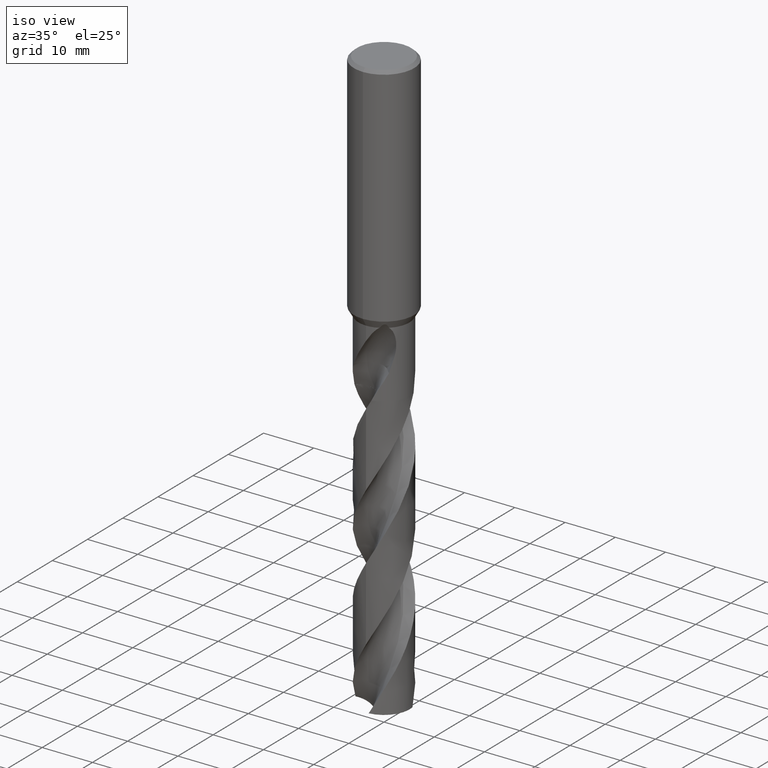
[diagram: clean part render]
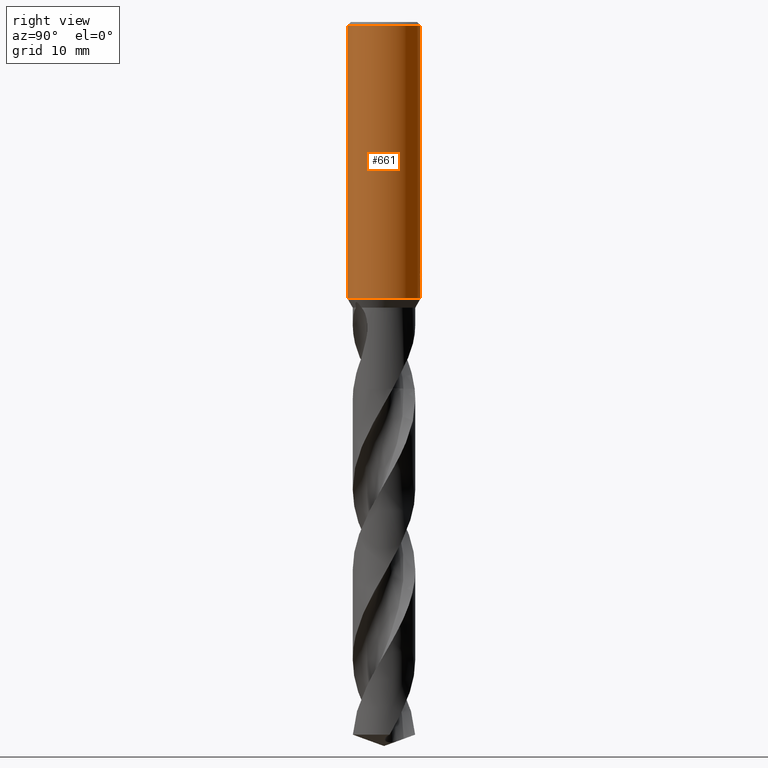
[diagram: tour spotlight — one face highlighted and labeled with its STEP entity id]
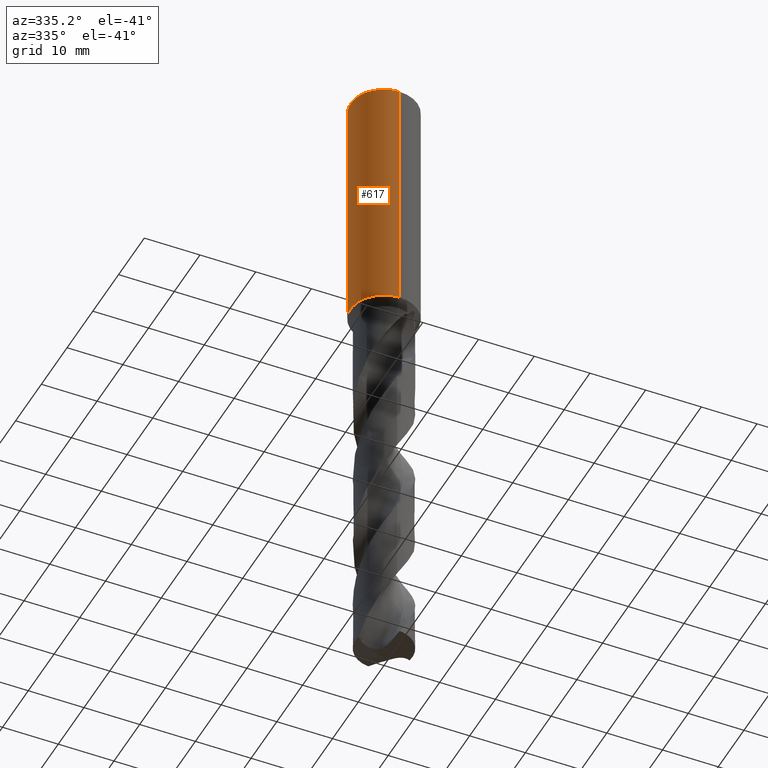
[diagram: tour spotlight — one face highlighted and labeled with its STEP entity id]
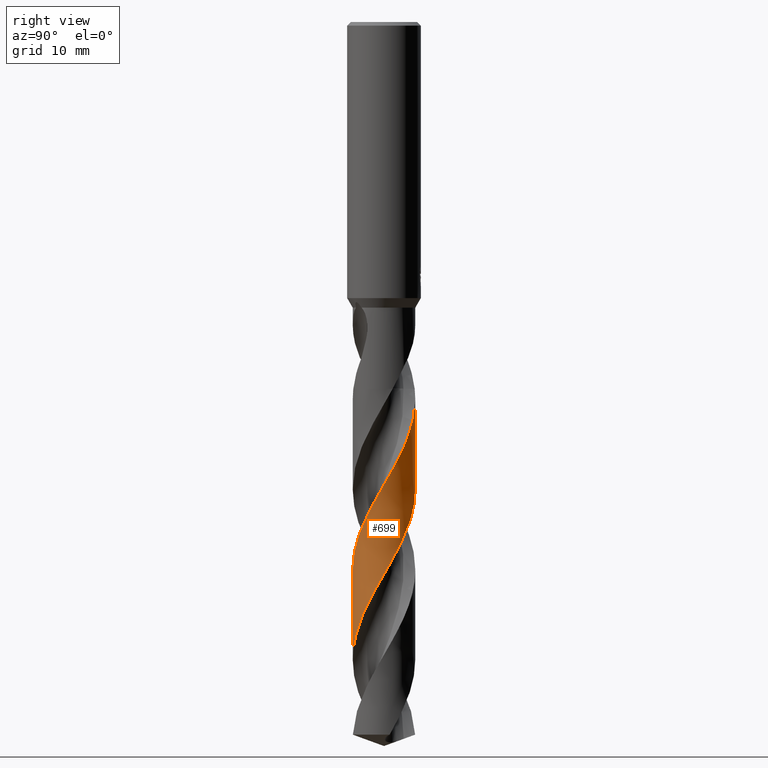
[diagram: tour spotlight — one face highlighted and labeled with its STEP entity id]
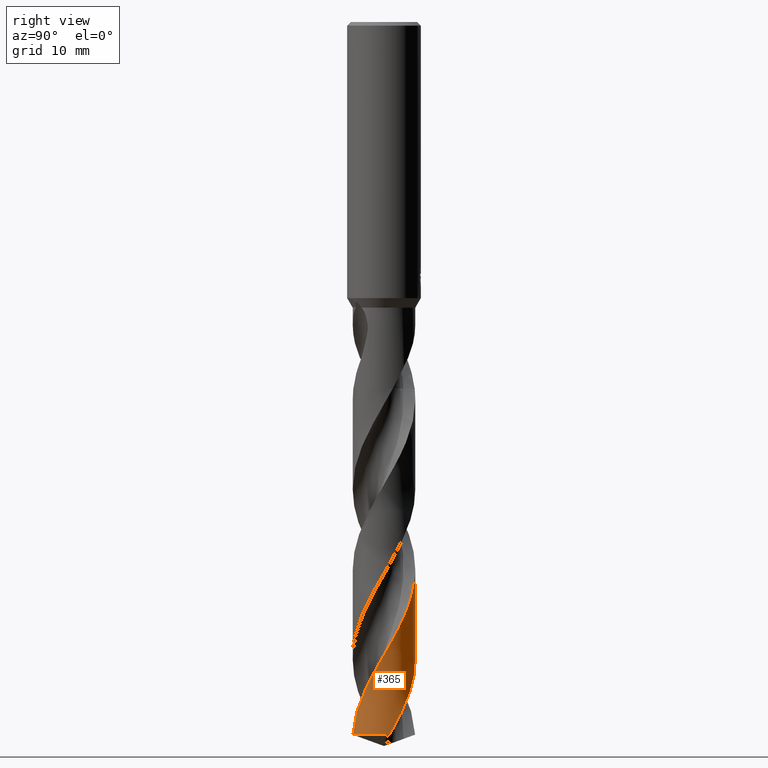
[diagram: tour spotlight — one face highlighted and labeled with its STEP entity id]
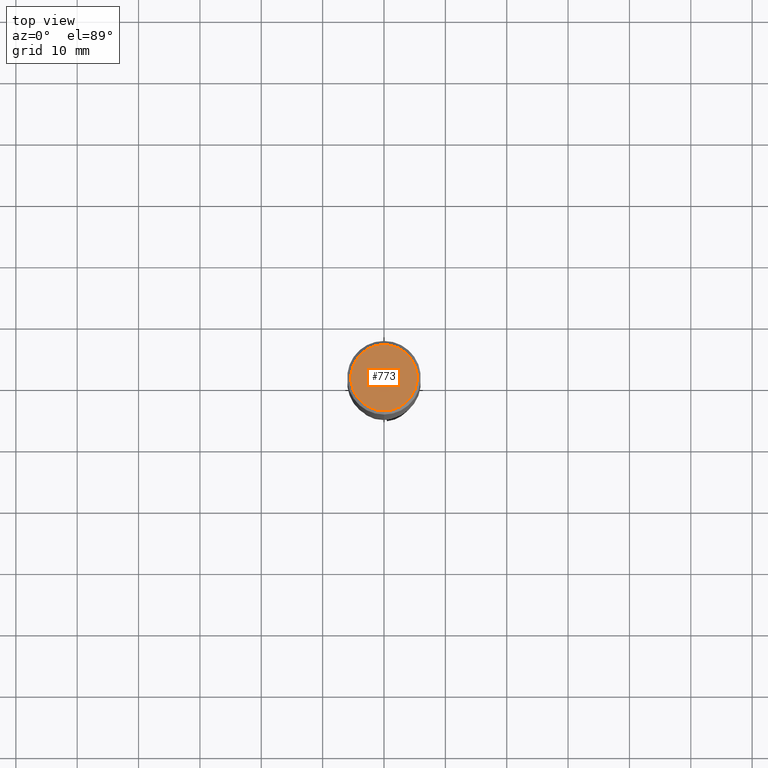
[diagram: tour spotlight — one face highlighted and labeled with its STEP entity id]
A machine part: a face-by-face anatomy tour. The part has 50 B-rep faces; the first image is the clean iso view, then the 5 largest visible faces are spotlighted one at a time (largest first), each with its STEP entity span.

Face 1 — right view, entity #661. In plain terms, the highlighted cylindrical surface (partial cylindrical patch) has radius 6 mm, axis along (-0, -0, 1).
Definition (entity closure, byte-faithful):
#317=EDGE_CURVE('',#433,#683,#873,.T.);
#349=EDGE_CURVE('',#709,#409,#908,.T.);
#357=VERTEX_POINT('',#916);
#373=VERTEX_POINT('',#935);
#407=VERTEX_POINT('',#973);
#409=VERTEX_POINT('',#975);
#433=VERTEX_POINT('',#1001);
#515=EDGE_CURVE('',#527,#373,#1088,.T.);
#527=VERTEX_POINT('',#1101);
#615=EDGE_CURVE('',#373,#683,#1192,.T.);
#633=EDGE_CURVE('',#409,#829,#1212,.T.);
#635=EDGE_CURVE('',#433,#407,#1214,.T.);
#653=VERTEX_POINT('',#1234);
#661=ADVANCED_FACE('',(#1242),#1243,.T.);
#663=EDGE_CURVE('',#829,#407,#1245,.T.);
#665=EDGE_CURVE('',#667,#527,#1247,.T.);
#667=VERTEX_POINT('',#1249);
#683=VERTEX_POINT('',#1267);
#689=EDGE_CURVE('',#357,#653,#1273,.T.);
#709=VERTEX_POINT('',#1296);
#739=EDGE_CURVE('',#763,#667,#1332,.T.);
#763=VERTEX_POINT('',#1357);
#781=EDGE_CURVE('',#653,#763,#1378,.T.);
#823=EDGE_CURVE('',#709,#357,#1427,.T.);
#829=VERTEX_POINT('',#1433);
#873=LINE('',#1552,#1553);
#908=LINE('',#2372,#2373);
#916=CARTESIAN_POINT('',(0.29010312703583,5.99298257762227,-42.9998328990228));
#935=CARTESIAN_POINT('',(0.799431726384364,5.94650392372275,-40.000000276873));
#973=CARTESIAN_POINT('',(7.34763812293426E-016,-6.0,-0.600000000000001));
#975=CARTESIAN_POINT('',(0.0,6.0,-45.0));
#1001=CARTESIAN_POINT('',(0.0,6.0,-0.600000000000001));
#1088=B_SPLINE_CURVE_WITH_KNOTS('',3,(#3954,#3955,#3956,#3957,#3958,#3959,#3960,#3961,#3962,#3963),.UNSPECIFIED.,.F.,.F.,(4,2,2,2,4),(0.616864768993534,0.925297153490302,1.23372953798707,1.54196894672892,1.85020835547076),.UNSPECIFIED.);
#1101=CARTESIAN_POINT('',(1.33721006514658,5.84909131760402,-40.5150484364821));
#1192=B_SPLINE_CURVE_WITH_KNOTS('',3,(#4704,#4705,#4706,#4707,#4708,#4709,#4710,#4711,#4712,#4713,#4714,#4715,#4716,#4717,#4718,#4719,#4720,#4721,#4722,#4723,#4724,#4725,#4726,#4727,#4728,#4729,#4730),.UNSPECIFIED.,.F.,.F.,(4,2,3,2,2,2,2,2,2,2,2,2,4),(-0.542204134993822,-0.271102067496911,0.0,0.271102067496911,0.542204134993821,0.813702489471782,1.08520084394974,1.35603748887758,1.62687413380543,1.89790609484719,2.16893805588896,2.43997001693073,2.71100197797249),.UNSPECIFIED.);
#1212=CIRCLE('',#4779,6.0);
#1214=CIRCLE('',#4782,6.0);
#1234=CARTESIAN_POINT('',(0.873560781758957,5.93606701112552,-41.3198931596091));
#1242=FACE_OUTER_BOUND('',#5630,.T.);
#1243=CYLINDRICAL_SURFACE('',#5631,6.0);
#1245=LINE('',#5634,#5635);
#1247=LINE('',#5638,#5639);
#1249=CARTESIAN_POINT('',(1.33721006514658,5.84909131760402,-42.2901657003257));
#1267=CARTESIAN_POINT('',(4.30282158127811E-015,6.0,-41.0232688117743));
#1273=ELLIPSE('',#6426,18.2879674402186,6.0);
#1296=CARTESIAN_POINT('',(-1.000126236349E-015,6.0,-43.0310253601033));
#1332=B_SPLINE_CURVE_WITH_KNOTS('',3,(#7626,#7627,#7628,#7629,#7630,#7631,#7632,#7633,#7634,#7635),.UNSPECIFIED.,.F.,.F.,(4,2,2,2,4),(8.01939987363182,8.32763927191416,8.6358786701965,8.94431104401671,9.25274341783691),.UNSPECIFIED.);
#1357=CARTESIAN_POINT('',(0.873560781758956,5.93606701112552,-42.7587351791531));
#1378=LINE('',#8521,#8522);
#1427=B_SPLINE_CURVE_WITH_KNOTS('',3,(#9453,#9454,#9455,#9456,#9457,#9458,#9459,#9460,#9461,#9462,#9463,#9464,#9465,#9466,#9467,#9468),.UNSPECIFIED.,.F.,.F.,(4,2,2,2,2,2,2,4),(5.86022917063912,6.16870405720903,6.47725847293827,6.78581288866751,7.09436730439676,7.402921720126,7.71116114554584,8.01940057096568),.UNSPECIFIED.);
#1433=CARTESIAN_POINT('',(7.34763812293426E-016,-6.0,-45.0));
#1552=CARTESIAN_POINT('',(-7.34763812293426E-016,6.0,-22.8));
#1553=VECTOR('',#9840,1.0);
#2372=CARTESIAN_POINT('',(-7.34763812293426E-016,6.0,-22.8));
#2373=VECTOR('',#9874,1.0);
#3954=CARTESIAN_POINT('',(1.47572255922527,5.81568937686614,-40.7778857706544));
#3955=CARTESIAN_POINT('',(1.43408414695966,5.82625505721574,-40.6776366099009));
#3956=CARTESIAN_POINT('',(1.38231447896357,5.83891732292942,-40.5816487554591));
#3957=CARTESIAN_POINT('',(1.26287133719122,5.86591039891312,-40.404259737123));
#3958=CARTESIAN_POINT('',(1.19518872778899,5.88021296420216,-40.3228604278537));
#3959=CARTESIAN_POINT('',(1.05112183874896,5.90766593069519,-40.1788296843787));
#3960=CARTESIAN_POINT('',(0.969743089830991,5.92179330445672,-40.111188656323));
#3961=CARTESIAN_POINT('',(0.792381475667972,5.94812316600191,-39.9918074082397));
#3962=CARTESIAN_POINT('',(0.696400454612605,5.96029984760923,-39.9400587582751));
#3963=CARTESIAN_POINT('',(0.596162331669374,5.97030907694891,-39.8984402290046));
#4704=CARTESIAN_POINT('',(0.665038279511986,5.96302977409838,-39.8135117776465));
#4705=CARTESIAN_POINT('',(0.728716101835783,5.95592798339707,-39.8772374280006));
#4706=CARTESIAN_POINT('',(0.783974665019777,5.94867668154847,-39.9579557273851));
#4707=CARTESIAN_POINT('',(0.857320507570535,5.93854966257537,-40.1349694534753));
#4708=CARTESIAN_POINT('',(0.875400981188567,5.93579591311343,-40.2312746567545));
#4709=CARTESIAN_POINT('',(0.875400981188567,5.93579591311343,-40.3216420125868));
#4710=CARTESIAN_POINT('',(0.875400981188567,5.93579591311343,-40.4120093684191));
#4711=CARTESIAN_POINT('',(0.857320507570535,5.93854966257537,-40.5083145716983));
#4712=CARTESIAN_POINT('',(0.783974665019777,5.94867668154847,-40.6853282977885));
#4713=CARTESIAN_POINT('',(0.728716101835784,5.95592798339707,-40.766046597173));
#4714=CARTESIAN_POINT('',(0.601267375301349,5.97014194593481,-40.8935910496813));
#4715=CARTESIAN_POINT('',(0.52050089626908,5.97804010501944,-40.9489349030958));
#4716=CARTESIAN_POINT('',(0.343370231624616,5.99082478161003,-41.0224010244896));
#4717=CARTESIAN_POINT('',(0.246995041657254,5.9955970178221,-41.0405166027747));
#4718=CARTESIAN_POINT('',(0.066278235124748,6.00031311449822,-41.0405166027747));
#4719=CARTESIAN_POINT('',(-0.0299950498794653,6.00057849353559,-41.0224799292738));
#4720=CARTESIAN_POINT('',(-0.207070170783241,5.99707961466003,-40.949146253936));
#4721=CARTESIAN_POINT('',(-0.287875322309355,5.99343072940708,-40.8938517989794));
#4722=CARTESIAN_POINT('',(-0.415515670858363,5.98593657913032,-40.7662728045656));
#4723=CARTESIAN_POINT('',(-0.470860335647626,5.98160913098325,-40.6854535363062));
#4724=CARTESIAN_POINT('',(-0.544278095376138,5.97537602271911,-40.5083128294691));
#4725=CARTESIAN_POINT('',(-0.562348199187247,5.97358891311336,-40.4119859996007));
#4726=CARTESIAN_POINT('',(-0.562348199187247,5.97358891311336,-40.2312980255729));
#4727=CARTESIAN_POINT('',(-0.544278095376141,5.97537602271911,-40.1349711957045));
#4728=CARTESIAN_POINT('',(-0.470860335647634,5.98160913098325,-39.9578304888674));
#4729=CARTESIAN_POINT('',(-0.415515670858364,5.98593657913032,-39.8770112206079));
#4730=CARTESIAN_POINT('',(-0.351672492652108,5.98968500489899,-39.8131987305268));
#4779=AXIS2_PLACEMENT_3D('',#10143,#10144,#10145);
#4782=AXIS2_PLACEMENT_3D('',#10146,#10147,#10148);
#5630=EDGE_LOOP('',(#10169,#10170,#10171,#10172,#10173,#10174,#10175,#10176,#10177,#10178,#10179,#10180));
#5631=AXIS2_PLACEMENT_3D('',#10181,#10182,#10183);
#5634=CARTESIAN_POINT('',(7.34763812293426E-016,-6.0,-22.8));
#5635=VECTOR('',#10184,1.0);
#5638=CARTESIAN_POINT('',(1.33721006514658,5.84909131760402,-41.4026070684039));
#5639=VECTOR('',#10185,1.0);
#6426=AXIS2_PLACEMENT_3D('',#10207,#10208,#10209);
#7626=CARTESIAN_POINT('',(0.596162353925366,5.97030907472655,-42.9067738917094));
#7627=CARTESIAN_POINT('',(0.696400473442532,5.96029984535159,-42.865155363849));
#7628=CARTESIAN_POINT('',(0.792381491214139,5.94812316388512,-42.8134067156396));
#7629=CARTESIAN_POINT('',(0.969743099309515,5.92179330285852,-42.6940254716034));
#7630=CARTESIAN_POINT('',(1.05112184544356,5.90766592947307,-42.6263844458399));
#7631=CARTESIAN_POINT('',(1.19518872950838,5.8802129638209,-42.4823537072831));
#7632=CARTESIAN_POINT('',(1.26287133655555,5.86591039902768,-42.4009544008203));
#7633=CARTESIAN_POINT('',(1.38231447417469,5.83891732404075,-42.2235653885997));
#7634=CARTESIAN_POINT('',(1.43408414037219,5.82625505882607,-42.1275775374671));
#7635=CARTESIAN_POINT('',(1.47572255119055,5.81568937890493,-42.0273283801715));
#8521=CARTESIAN_POINT('',(0.873560781758957,5.93606701112552,-42.0393141693811));
#8522=VECTOR('',#10328,1.0);
#9453=CARTESIAN_POINT('',(-1.37942962388976,5.83927854385585,-42.3120938518854));
#9454=CARTESIAN_POINT('',(-1.3197524098915,5.85337626434356,-42.4007460556891));
#9455=CARTESIAN_POINT('',(-1.25213007147997,5.86835238153676,-42.4821006164436));
#9456=CARTESIAN_POINT('',(-1.10815476297052,5.89723538536299,-42.6261133873133));
#9457=CARTESIAN_POINT('',(-1.02679168998259,5.91217036370492,-42.6937759496578));
#9458=CARTESIAN_POINT('',(-0.849449577088966,5.94024368186983,-42.8132077327803));
#9459=CARTESIAN_POINT('',(-0.75347222810614,5.95335623661259,-42.8649855238005));
#9460=CARTESIAN_POINT('',(-0.552969605024409,5.97531551411668,-42.9482857310807));
#9461=CARTESIAN_POINT('',(-0.448275455975639,5.98416266823847,-42.9798740542996));
#9462=CARTESIAN_POINT('',(-0.237398161173605,5.99623180317797,-43.0213727490831));
#9463=CARTESIAN_POINT('',(-0.131212492151728,5.9994467834274,-43.0312723335086));
#9464=CARTESIAN_POINT('',(0.0743831578630581,6.00041865072596,-43.0312723335086));
#9465=CARTESIAN_POINT('',(0.180490238104753,5.99821260764714,-43.021392590677));
#9466=CARTESIAN_POINT('',(0.391259717323761,5.98815890288379,-42.9799476485545));
#9467=CARTESIAN_POINT('',(0.495924498667214,5.98031828233743,-42.948392857806));
#9468=CARTESIAN_POINT('',(0.596162626581452,5.9703090475006,-42.9067743263419));
#9840=DIRECTION('',(0.0,0.0,-1.0));
#9874=DIRECTION('',(0.0,0.0,-1.0));
#10143=CARTESIAN_POINT('',(0.0,0.0,-45.0));
#10144=DIRECTION('',(0.0,0.0,-1.0));
#10145=DIRECTION('',(0.0,1.0,0.0));
#10146=CARTESIAN_POINT('',(0.0,0.0,-0.600000000000001));
#10147=DIRECTION('',(0.0,0.0,-1.0));
#10148=DIRECTION('',(0.0,1.0,0.0));
#10169=ORIENTED_EDGE('',*,*,#317,.F.);
#10170=ORIENTED_EDGE('',*,*,#635,.T.);
#10171=ORIENTED_EDGE('',*,*,#663,.F.);
#10172=ORIENTED_EDGE('',*,*,#633,.F.);
#10173=ORIENTED_EDGE('',*,*,#349,.F.);
#10174=ORIENTED_EDGE('',*,*,#823,.T.);
#10175=ORIENTED_EDGE('',*,*,#689,.T.);
#10176=ORIENTED_EDGE('',*,*,#781,.T.);
#10177=ORIENTED_EDGE('',*,*,#739,.T.);
#10178=ORIENTED_EDGE('',*,*,#665,.T.);
#10179=ORIENTED_EDGE('',*,*,#515,.T.);
#10180=ORIENTED_EDGE('',*,*,#615,.T.);
#10181=CARTESIAN_POINT('',(0.0,0.0,-22.8));
#10182=DIRECTION('',(-0.0,-0.0,1.0));
#10183=DIRECTION('',(0.0,1.0,0.0));
#10184=DIRECTION('',(-0.0,-0.0,1.0));
#10185=DIRECTION('',(-0.0,-0.0,1.0));
#10207=CARTESIAN_POINT('',(0.0,0.0,-43.8351219173269));
#10208=DIRECTION('',(0.944648353914092,0.0,-0.328084573619969));
#10209=DIRECTION('',(0.328084573619969,-0.0,0.944648353914092));
#10328=DIRECTION('',(0.0,0.0,-1.0));

Face 2 — auxiliary view, entity #617. In plain terms, the highlighted cylindrical surface (partial cylindrical patch) has radius 6 mm, axis along (-0, -0, 1).
Definition (entity closure, byte-faithful):
#301=EDGE_CURVE('',#467,#427,#856,.T.);
#317=EDGE_CURVE('',#433,#683,#873,.T.);
#325=EDGE_CURVE('',#829,#409,#882,.T.);
#349=EDGE_CURVE('',#709,#409,#908,.T.);
#407=VERTEX_POINT('',#973);
#409=VERTEX_POINT('',#975);
#413=EDGE_CURVE('',#407,#433,#979,.T.);
#427=VERTEX_POINT('',#995);
#433=VERTEX_POINT('',#1001);
#445=VERTEX_POINT('',#1014);
#467=VERTEX_POINT('',#1037);
#501=VERTEX_POINT('',#1073);
#531=EDGE_CURVE('',#683,#649,#1105,.T.);
#617=ADVANCED_FACE('',(#1194),#1195,.T.);
#639=EDGE_CURVE('',#445,#501,#1218,.T.);
#649=VERTEX_POINT('',#1230);
#655=VERTEX_POINT('',#1236);
#659=EDGE_CURVE('',#649,#445,#1240,.T.);
#663=EDGE_CURVE('',#829,#407,#1245,.T.);
#683=VERTEX_POINT('',#1267);
#709=VERTEX_POINT('',#1296);
#771=EDGE_CURVE('',#427,#709,#1366,.T.);
#815=EDGE_CURVE('',#655,#467,#1419,.T.);
#825=EDGE_CURVE('',#501,#655,#1429,.T.);
#829=VERTEX_POINT('',#1433);
#856=ELLIPSE('',#1454,6.68957059225716,6.0);
#873=LINE('',#1552,#1553);
#882=CIRCLE('',#1563,6.0);
#908=LINE('',#2372,#2373);
#973=CARTESIAN_POINT('',(7.34763812293426E-016,-6.0,-0.600000000000001));
#975=CARTESIAN_POINT('',(0.0,6.0,-45.0));
#979=CIRCLE('',#3539,6.0);
#995=CARTESIAN_POINT('',(-1.337052752443,5.84912727996105,-42.3720803908795));
#1001=CARTESIAN_POINT('',(0.0,6.0,-0.600000000000001));
#1014=CARTESIAN_POINT('',(-0.562333990228013,5.97359025071474,-40.3171221986971));
#1037=CARTESIAN_POINT('',(-7.34750035790944E-016,6.0,-41.7128911336578));
#1073=CARTESIAN_POINT('',(-1.0350734039088,5.91004425097822,-40.3171221986971));
#1105=B_SPLINE_CURVE_WITH_KNOTS('',3,(#4064,#4065,#4066,#4067,#4068,#4069,#4070,#4071,#4072,#4073,#4074,#4075,#4076,#4077,#4078,#4079,#4080,#4081,#4082,#4083,#4084,#4085,#4086,#4087,#4088,#4089,#4090),.UNSPECIFIED.,.F.,.F.,(4,2,3,2,2,2,2,2,2,2,2,2,4),(-0.542204134993822,-0.271102067496911,0.0,0.271102067496911,0.542204134993821,0.813702489471782,1.08520084394974,1.35603748887758,1.62687413380543,1.89790609484719,2.16893805588896,2.43997001693073,2.71100197797249),.UNSPECIFIED.);
#1194=FACE_OUTER_BOUND('',#4732,.T.);
#1195=CYLINDRICAL_SURFACE('',#4733,6.0);
#1218=CIRCLE('',#4869,6.0);
#1230=CARTESIAN_POINT('',(-0.486378944383043,5.98025380083996,-40.6432837483006));
#1236=CARTESIAN_POINT('',(1.23752563440958E-015,6.0,-41.5000801551881));
#1240=B_SPLINE_CURVE_WITH_KNOTS('',3,(#5602,#5603,#5604,#5605,#5606,#5607,#5608,#5609,#5610,#5611,#5612,#5613,#5614,#5615,#5616,#5617,#5618,#5619,#5620,#5621,#5622,#5623,#5624,#5625,#5626,#5627,#5628),.UNSPECIFIED.,.F.,.F.,(4,2,3,2,2,2,2,2,2,2,2,2,4),(-0.542204134993822,-0.271102067496911,0.0,0.271102067496911,0.542204134993821,0.813702489471782,1.08520084394974,1.35603748887758,1.62687413380543,1.89790609484719,2.16893805588896,2.43997001693073,2.71100197797249),.UNSPECIFIED.);
#1245=LINE('',#5634,#5635);
#1267=CARTESIAN_POINT('',(4.30282158127811E-015,6.0,-41.0232688117743));
#1296=CARTESIAN_POINT('',(-1.000126236349E-015,6.0,-43.0310253601033));
#1366=B_SPLINE_CURVE_WITH_KNOTS('',3,(#7779,#7780,#7781,#7782,#7783,#7784,#7785,#7786,#7787,#7788,#7789,#7790,#7791,#7792,#7793,#7794),.UNSPECIFIED.,.F.,.F.,(4,2,2,2,2,2,2,4),(5.86022917063912,6.16870405720903,6.47725847293827,6.78581288866751,7.09436730439676,7.402921720126,7.71116114554584,8.01940057096568),.UNSPECIFIED.);
#1419=LINE('',#9434,#9435);
#1429=B_SPLINE_CURVE_WITH_KNOTS('',3,(#9471,#9472,#9473,#9474,#9475,#9476,#9477,#9478,#9479,#9480,#9481,#9482,#9483,#9484),.UNSPECIFIED.,.F.,.F.,(4,2,2,2,2,2,4),(3.12901819529899,3.57583262703438,4.02264705876978,4.46946149050517,4.91564920039673,5.36183691028829,5.8097355416915),.UNSPECIFIED.);
#1433=CARTESIAN_POINT('',(7.34763812293426E-016,-6.0,-45.0));
#1454=AXIS2_PLACEMENT_3D('',#9829,#9830,#9831);
#1552=CARTESIAN_POINT('',(-7.34763812293426E-016,6.0,-22.8));
#1553=VECTOR('',#9840,1.0);
#1563=AXIS2_PLACEMENT_3D('',#9848,#9849,#9850);
#2372=CARTESIAN_POINT('',(-7.34763812293426E-016,6.0,-22.8));
#2373=VECTOR('',#9874,1.0);
#3539=AXIS2_PLACEMENT_3D('',#9955,#9956,#9957);
#4064=CARTESIAN_POINT('',(0.665038279511986,5.96302977409838,-39.8135117776465));
#4065=CARTESIAN_POINT('',(0.728716101835783,5.95592798339707,-39.8772374280006));
#4066=CARTESIAN_POINT('',(0.783974665019777,5.94867668154847,-39.9579557273851));
#4067=CARTESIAN_POINT('',(0.857320507570535,5.93854966257537,-40.1349694534753));
#4068=CARTESIAN_POINT('',(0.875400981188567,5.93579591311343,-40.2312746567545));
#4069=CARTESIAN_POINT('',(0.875400981188567,5.93579591311343,-40.3216420125868));
#4070=CARTESIAN_POINT('',(0.875400981188567,5.93579591311343,-40.4120093684191));
#4071=CARTESIAN_POINT('',(0.857320507570535,5.93854966257537,-40.5083145716983));
#4072=CARTESIAN_POINT('',(0.783974665019777,5.94867668154847,-40.6853282977885));
#4073=CARTESIAN_POINT('',(0.728716101835784,5.95592798339707,-40.766046597173));
#4074=CARTESIAN_POINT('',(0.601267375301349,5.97014194593481,-40.8935910496813));
#4075=CARTESIAN_POINT('',(0.52050089626908,5.97804010501944,-40.9489349030958));
#4076=CARTESIAN_POINT('',(0.343370231624616,5.99082478161003,-41.0224010244896));
#4077=CARTESIAN_POINT('',(0.246995041657254,5.9955970178221,-41.0405166027747));
#4078=CARTESIAN_POINT('',(0.066278235124748,6.00031311449822,-41.0405166027747));
#4079=CARTESIAN_POINT('',(-0.0299950498794653,6.00057849353559,-41.0224799292738));
#4080=CARTESIAN_POINT('',(-0.207070170783241,5.99707961466003,-40.949146253936));
#4081=CARTESIAN_POINT('',(-0.287875322309355,5.99343072940708,-40.8938517989794));
#4082=CARTESIAN_POINT('',(-0.415515670858363,5.98593657913032,-40.7662728045656));
#4083=CARTESIAN_POINT('',(-0.470860335647626,5.98160913098325,-40.6854535363062));
#4084=CARTESIAN_POINT('',(-0.544278095376138,5.97537602271911,-40.5083128294691));
#4085=CARTESIAN_POINT('',(-0.562348199187247,5.97358891311336,-40.4119859996007));
#4086=CARTESIAN_POINT('',(-0.562348199187247,5.97358891311336,-40.2312980255729));
#4087=CARTESIAN_POINT('',(-0.544278095376141,5.97537602271911,-40.1349711957045));
#4088=CARTESIAN_POINT('',(-0.470860335647634,5.98160913098325,-39.9578304888674));
#4089=CARTESIAN_POINT('',(-0.415515670858364,5.98593657913032,-39.8770112206079));
#4090=CARTESIAN_POINT('',(-0.351672492652108,5.98968500489899,-39.8131987305268));
#4732=EDGE_LOOP('',(#10118,#10119,#10120,#10121,#10122,#10123,#10124,#10125,#10126,#10127,#10128,#10129));
#4733=AXIS2_PLACEMENT_3D('',#10130,#10131,#10132);
#4869=AXIS2_PLACEMENT_3D('',#10149,#10150,#10151);
#5602=CARTESIAN_POINT('',(0.665038279511986,5.96302977409838,-39.8135117776465));
#5603=CARTESIAN_POINT('',(0.728716101835783,5.95592798339707,-39.8772374280006));
#5604=CARTESIAN_POINT('',(0.783974665019777,5.94867668154847,-39.9579557273851));
#5605=CARTESIAN_POINT('',(0.857320507570535,5.93854966257537,-40.1349694534753));
#5606=CARTESIAN_POINT('',(0.875400981188567,5.93579591311343,-40.2312746567545));
#5607=CARTESIAN_POINT('',(0.875400981188567,5.93579591311343,-40.3216420125868));
#5608=CARTESIAN_POINT('',(0.875400981188567,5.93579591311343,-40.4120093684191));
#5609=CARTESIAN_POINT('',(0.857320507570535,5.93854966257537,-40.5083145716983));
#5610=CARTESIAN_POINT('',(0.783974665019777,5.94867668154847,-40.6853282977885));
#5611=CARTESIAN_POINT('',(0.728716101835784,5.95592798339707,-40.766046597173));
#5612=CARTESIAN_POINT('',(0.601267375301349,5.97014194593481,-40.8935910496813));
#5613=CARTESIAN_POINT('',(0.52050089626908,5.97804010501944,-40.9489349030958));
#5614=CARTESIAN_POINT('',(0.343370231624616,5.99082478161003,-41.0224010244896));
#5615=CARTESIAN_POINT('',(0.246995041657254,5.9955970178221,-41.0405166027747));
#5616=CARTESIAN_POINT('',(0.066278235124748,6.00031311449822,-41.0405166027747));
#5617=CARTESIAN_POINT('',(-0.0299950498794653,6.00057849353559,-41.0224799292738));
#5618=CARTESIAN_POINT('',(-0.207070170783241,5.99707961466003,-40.949146253936));
#5619=CARTESIAN_POINT('',(-0.287875322309355,5.99343072940708,-40.8938517989794));
#5620=CARTESIAN_POINT('',(-0.415515670858363,5.98593657913032,-40.7662728045656));
#5621=CARTESIAN_POINT('',(-0.470860335647626,5.98160913098325,-40.6854535363062));
#5622=CARTESIAN_POINT('',(-0.544278095376138,5.97537602271911,-40.5083128294691));
#5623=CARTESIAN_POINT('',(-0.562348199187247,5.97358891311336,-40.4119859996007));
#5624=CARTESIAN_POINT('',(-0.562348199187247,5.97358891311336,-40.2312980255729));
#5625=CARTESIAN_POINT('',(-0.544278095376141,5.97537602271911,-40.1349711957045));
#5626=CARTESIAN_POINT('',(-0.470860335647634,5.98160913098325,-39.9578304888674));
#5627=CARTESIAN_POINT('',(-0.415515670858364,5.98593657913032,-39.8770112206079));
#5628=CARTESIAN_POINT('',(-0.351672492652108,5.98968500489899,-39.8131987305268));
#5634=CARTESIAN_POINT('',(7.34763812293426E-016,-6.0,-22.8));
#5635=VECTOR('',#10184,1.0);
#7779=CARTESIAN_POINT('',(-1.37942962388976,5.83927854385585,-42.3120938518854));
#7780=CARTESIAN_POINT('',(-1.3197524098915,5.85337626434356,-42.4007460556891));
#7781=CARTESIAN_POINT('',(-1.25213007147997,5.86835238153676,-42.4821006164436));
#7782=CARTESIAN_POINT('',(-1.10815476297052,5.89723538536299,-42.6261133873133));
#7783=CARTESIAN_POINT('',(-1.02679168998259,5.91217036370492,-42.6937759496578));
#7784=CARTESIAN_POINT('',(-0.849449577088966,5.94024368186983,-42.8132077327803));
#7785=CARTESIAN_POINT('',(-0.75347222810614,5.95335623661259,-42.8649855238005));
#7786=CARTESIAN_POINT('',(-0.552969605024409,5.97531551411668,-42.9482857310807));
#7787=CARTESIAN_POINT('',(-0.448275455975639,5.98416266823847,-42.9798740542996));
#7788=CARTESIAN_POINT('',(-0.237398161173605,5.99623180317797,-43.0213727490831));
#7789=CARTESIAN_POINT('',(-0.131212492151728,5.9994467834274,-43.0312723335086));
#7790=CARTESIAN_POINT('',(0.0743831578630581,6.00041865072596,-43.0312723335086));
#7791=CARTESIAN_POINT('',(0.180490238104753,5.99821260764714,-43.021392590677));
#7792=CARTESIAN_POINT('',(0.391259717323761,5.98815890288379,-42.9799476485545));
#7793=CARTESIAN_POINT('',(0.495924498667214,5.98031828233743,-42.948392857806));
#7794=CARTESIAN_POINT('',(0.596162626581452,5.9703090475006,-42.9067743263419));
#9434=CARTESIAN_POINT('',(-7.34763812293426E-016,6.0,-22.8));
#9435=VECTOR('',#10399,1.0);
#9471=CARTESIAN_POINT('',(-0.94480385302947,5.92514520322504,-39.872959764165));
#9472=CARTESIAN_POINT('',(-1.00527134460613,5.91550326140901,-40.018714084793));
#9473=CARTESIAN_POINT('',(-1.03510901790186,5.91003801350366,-40.177363716821));
#9474=CARTESIAN_POINT('',(-1.03510901790186,5.91003801350366,-40.4752400046446));
#9475=CARTESIAN_POINT('',(-1.00527134460613,5.91550326140901,-40.6338896366726));
#9476=CARTESIAN_POINT('',(-0.884336361452813,5.93478714504107,-40.9253982779286));
#9477=CARTESIAN_POINT('',(-0.793255124431118,5.94827036688117,-41.0582860460074));
#9478=CARTESIAN_POINT('',(-0.583383143066729,5.97250423473111,-41.2679818745928));
#9479=CARTESIAN_POINT('',(-0.450548678141594,5.98483728073992,-41.3589178059373));
#9480=CARTESIAN_POINT('',(-0.159231245503483,5.9996597235035,-41.4796190611952));
#9481=CARTESIAN_POINT('',(-0.000726257391805651,6.00184303846568,-41.5093686300866));
#9482=CARTESIAN_POINT('',(0.297211894038787,5.99449376042891,-41.5093686300866));
#9483=CARTESIAN_POINT('',(0.455980995840601,5.98444103025712,-41.4794145753496));
#9484=CARTESIAN_POINT('',(0.601711422200172,5.96975237044166,-41.418892629059));
#9829=CARTESIAN_POINT('',(0.0,0.0,-41.7128911336578));
#9830=DIRECTION('',(-0.442195774284071,0.0,0.896918556617774));
#9831=DIRECTION('',(0.896918556617774,-0.0,0.442195774284071));
#9840=DIRECTION('',(0.0,0.0,-1.0));
#9848=CARTESIAN_POINT('',(0.0,0.0,-45.0));
#9849=DIRECTION('',(0.0,0.0,-1.0));
#9850=DIRECTION('',(0.0,1.0,0.0));
#9874=DIRECTION('',(0.0,0.0,-1.0));
#9955=CARTESIAN_POINT('',(0.0,0.0,-0.600000000000001));
#9956=DIRECTION('',(0.0,0.0,-1.0));
#9957=DIRECTION('',(0.0,1.0,0.0));
#10118=ORIENTED_EDGE('',*,*,#317,.T.);
#10119=ORIENTED_EDGE('',*,*,#531,.T.);
#10120=ORIENTED_EDGE('',*,*,#659,.T.);
#10121=ORIENTED_EDGE('',*,*,#639,.T.);
#10122=ORIENTED_EDGE('',*,*,#825,.T.);
#10123=ORIENTED_EDGE('',*,*,#815,.T.);
#10124=ORIENTED_EDGE('',*,*,#301,.T.);
#10125=ORIENTED_EDGE('',*,*,#771,.T.);
#10126=ORIENTED_EDGE('',*,*,#349,.T.);
#10127=ORIENTED_EDGE('',*,*,#325,.F.);
#10128=ORIENTED_EDGE('',*,*,#663,.T.);
#10129=ORIENTED_EDGE('',*,*,#413,.T.);
#10130=CARTESIAN_POINT('',(0.0,0.0,-22.8));
#10131=DIRECTION('',(-0.0,-0.0,1.0));
#10132=DIRECTION('',(0.0,1.0,0.0));
#10149=CARTESIAN_POINT('',(0.0,0.0,-40.3171221986971));
#10150=DIRECTION('',(0.0,-0.0,1.0));
#10151=DIRECTION('',(0.0,1.0,0.0));
#10184=DIRECTION('',(-0.0,-0.0,1.0));
#10399=DIRECTION('',(0.0,0.0,-1.0));

Face 3 — right view, entity #699. In plain terms, the highlighted conical surface has half-angle 0 deg.
Definition (entity closure, byte-faithful):
#303=EDGE_CURVE('',#595,#769,#858,.T.);
#327=EDGE_CURVE('',#641,#565,#884,.T.);
#475=EDGE_CURVE('',#641,#769,#1046,.T.);
#565=VERTEX_POINT('',#1140);
#595=VERTEX_POINT('',#1172);
#641=VERTEX_POINT('',#1220);
#699=ADVANCED_FACE('',(#1285),#1286,.T.);
#757=EDGE_CURVE('',#595,#565,#1351,.T.);
#769=VERTEX_POINT('',#1364);
#858=B_SPLINE_CURVE_WITH_KNOTS('',3,(#1457,#1458,#1459,#1460,#1461,#1462,#1463,#1464,#1465,#1466,#1467,#1468,#1469,#1470,#1471,#1472,#1473,#1474,#1475,#1476,#1477,#1478,#1479,#1480,#1481,#1482,#1483,#1484,#1485,#1486,#1487,#1488,#1489,#1490,#1491,#1492,#1493,#1494,#1495,#1496,#1497,#1498,#1499,#1500,#1501,#1502,#1503,#1504,#1505,#1506,#1507,#1508,#1509,#1510,#1511,#1512,#1513,#1514,#1515,#1516,#1517,#1518,#1519,#1520,#1521,#1522,#1523,#1524,#1525,#1526,#1527,#1528,#1529,#1530,#1531,#1532,#1533,#1534),.UNSPECIFIED.,.F.,.F.,(4,2,2,2,2,2,2,2,2,2,2,2,2,2,2,2,2,2,2,2,2,2,2,2,2,2,2,2,2,2,2,2,2,2,2,2,2,2,4),(0.0,0.506806175186956,2.69772159976529,4.39821414943866,5.06985226234535,6.05446138479727,6.6155146856946,7.39544015269118,9.1730037461211,9.35662725150545,10.9569984848496,12.1630978019623,15.1464025452352,17.3925714709042,19.6606016495272,21.9100545164391,24.1780187171165,26.5652812262565,28.5220833392288,30.4759061097924,33.3469893832097,35.5102113997374,38.5334292747973,39.3424559377009,42.7908344138158,43.8460064045198,47.230343596797,48.2550312815849,51.2280095190966,52.0685973276942,52.8538685811947,54.345493536443,55.0006115957432,56.229319076894,56.7671955061043,57.2703456125229,59.1621746454104,59.5163769769078,64.8776815178154),.UNSPECIFIED.);
#884=B_SPLINE_CURVE_WITH_KNOTS('',3,(#1566,#1567,#1568,#1569,#1570,#1571,#1572,#1573,#1574,#1575,#1576,#1577,#1578,#1579,#1580,#1581,#1582,#1583,#1584,#1585,#1586,#1587,#1588,#1589,#1590,#1591,#1592,#1593,#1594,#1595,#1596,#1597,#1598,#1599,#1600,#1601,#1602,#1603,#1604,#1605,#1606,#1607,#1608,#1609,#1610,#1611,#1612,#1613,#1614,#1615,#1616,#1617,#1618,#1619,#1620,#1621,#1622,#1623,#1624,#1625,#1626,#1627,#1628,#1629,#1630,#1631,#1632,#1633,#1634,#1635,#1636,#1637,#1638,#1639,#1640,#1641,#1642,#1643,#1644,#1645,#1646,#1647,#1648,#1649),.UNSPECIFIED.,.F.,.F.,(4,2,2,2,2,2,2,2,2,2,2,2,2,2,2,2,2,2,2,2,2,2,2,2,2,2,2,2,2,2,2,2,2,2,2,2,2,2,2,2,2,4),(0.0,4.14104329749527,5.11842358928837,6.08666253894648,7.05877666723696,9.01036426490475,10.0033521753285,10.3315079213021,11.7449117975777,12.7232042316135,16.9422837005349,17.0632145290833,20.5080083112182,23.2581567473626,25.2268379664242,26.640381537535,28.8179240590602,32.2396876966281,34.6587318716296,35.8792422499416,38.1912921986218,39.179433071881,40.4222015232478,42.7059818802668,43.6946195520445,44.9754610945242,47.2606856978877,51.1929236706221,52.8928398321234,54.2130159433661,55.560852710194,56.1535217087249,57.2643225463067,57.7512955933355,58.6617007419882,60.2588877445092,60.5582633934712,61.6830222783156,63.3719657069717,64.2159601657003,64.6377815976494,65.0592084040701),.UNSPECIFIED.);
#1046=LINE('',#3854,#3855);
#1140=CARTESIAN_POINT('',(-8.63881465614224E-013,-5.09995229847968,-89.2669255900574));
#1172=CARTESIAN_POINT('',(2.79585771434916E-012,-5.09997824999004,-103.888980170715));
#1220=CARTESIAN_POINT('',(9.86913019607822E-012,5.09990305292981,-61.5201351925711));
#1285=FACE_OUTER_BOUND('',#6439,.T.);
#1286=CONICAL_SURFACE('',#6440,5.09995,1.7748196879988E-006);
#1351=LINE('',#7757,#7758);
#1364=CARTESIAN_POINT('',(-9.74273749090929E-012,5.09992900482054,-76.1424040953496));
#1457=CARTESIAN_POINT('',(-5.01437536289495,-0.930612550953527,-116.143751805242));
#1458=CARTESIAN_POINT('',(-4.9990156640066,-1.01337306155312,-115.997280155719));
#1459=CARTESIAN_POINT('',(-4.98160673251397,-1.09579353412783,-115.850301911086));
#1460=CARTESIAN_POINT('',(-4.87744584134155,-1.53446392031619,-115.066026681066));
#1461=CARTESIAN_POINT('',(-4.75454219505738,-1.88130734597919,-114.433182944864));
#1462=CARTESIAN_POINT('',(-4.4714205411358,-2.46934917168271,-113.303599313404));
#1463=CARTESIAN_POINT('',(-4.32642306954688,-2.71535747189411,-112.812350880042));
#1464=CARTESIAN_POINT('',(-4.09671358556612,-3.03965892210803,-112.123603532596));
#1465=CARTESIAN_POINT('',(-4.02869059727373,-3.12925580712766,-111.928327710424));
#1466=CARTESIAN_POINT('',(-3.85364941154734,-3.34462584414786,-111.447366291556));
#1467=CARTESIAN_POINT('',(-3.74338890942619,-3.46759639941368,-111.161957305325));
#1468=CARTESIAN_POINT('',(-3.56113980127987,-3.65199141933991,-110.713274970349));
#1469=CARTESIAN_POINT('',(-3.49317491953676,-3.7170510486422,-110.550479162151));
#1470=CARTESIAN_POINT('',(-3.32660145001009,-3.86790620793833,-110.16110013988));
#1471=CARTESIAN_POINT('',(-3.22639980684137,-3.95187678677829,-109.934286903758));
#1472=CARTESIAN_POINT('',(-2.8874124521328,-4.21444426559598,-109.191601306119));
#1473=CARTESIAN_POINT('',(-2.63632777164021,-4.37588522808612,-108.678154904842));
#1474=CARTESIAN_POINT('',(-2.34541078255551,-4.52878015004869,-108.108617505906));
#1475=CARTESIAN_POINT('',(-2.31804275199572,-4.54284929407706,-108.055276453413));
#1476=CARTESIAN_POINT('',(-2.05072575888418,-4.67722178359776,-107.536878484027));
#1477=CARTESIAN_POINT('',(-1.80193860207216,-4.77856550838434,-107.073892332235));
#1478=CARTESIAN_POINT('',(-1.35405804193212,-4.92109216011242,-106.258075377716));
#1479=CARTESIAN_POINT('',(-1.15816486900284,-4.97085452158816,-105.906053939047));
#1480=CARTESIAN_POINT('',(-0.468015067129299,-5.10305303853319,-104.68792901675));
#1481=CARTESIAN_POINT('',(0.0345516234611005,-5.12436552032611,-103.834742762714));
#1482=CARTESIAN_POINT('',(0.907158342407013,-5.03277639519837,-102.315581546276));
#1483=CARTESIAN_POINT('',(1.27611766301375,-4.95212811014398,-101.657907080069));
#1484=CARTESIAN_POINT('',(1.99433130689478,-4.70929417495415,-100.346277614883));
#1485=CARTESIAN_POINT('',(2.3402268930041,-4.54730274844383,-99.6937171090476));
#1486=CARTESIAN_POINT('',(2.98673605067603,-4.15110151986585,-98.3812957479625));
#1487=CARTESIAN_POINT('',(3.28550329496123,-3.91891972628882,-97.7230595034067));
#1488=CARTESIAN_POINT('',(3.82943013031851,-3.38972930185451,-96.4105496973377));
#1489=CARTESIAN_POINT('',(4.07174730419821,-3.09442068708233,-95.757945295402));
#1490=CARTESIAN_POINT('',(4.49694006104684,-2.43879471680514,-94.4054680304545));
#1491=CARTESIAN_POINT('',(4.67454093233806,-2.07828015218606,-93.70676173416));
#1492=CARTESIAN_POINT('',(4.91791214534245,-1.38991935680526,-92.4445981840229));
#1493=CARTESIAN_POINT('',(4.99727312464737,-1.07002140805806,-91.8801712570881));
#1494=CARTESIAN_POINT('',(5.09323082010345,-0.419922308027232,-90.7441187340988));
#1495=CARTESIAN_POINT('',(5.10959936990615,-0.0921332461078373,-90.1726849288547));
#1496=CARTESIAN_POINT('',(5.07244863455344,0.714662142703177,-88.7716151265527));
#1497=CARTESIAN_POINT('',(4.98261522701799,1.18927144293379,-87.9507333931186));
#1498=CARTESIAN_POINT('',(4.7106610616158,1.98757638902492,-86.4903646439546));
#1499=CARTESIAN_POINT('',(4.55772274175484,2.31694703363092,-85.8582460001127));
#1500=CARTESIAN_POINT('',(4.10950881128891,3.06242591892712,-84.3534938063252));
#1501=CARTESIAN_POINT('',(3.7855133875854,3.4545363806879,-83.4907191021389));
#1502=CARTESIAN_POINT('',(3.3100228322701,3.88218554586589,-82.3773805516894));
#1503=CARTESIAN_POINT('',(3.20612658802229,3.96844285591263,-82.1416373804866));
#1504=CARTESIAN_POINT('',(2.63910858137851,4.40213494808915,-80.9011328442572));
#1505=CARTESIAN_POINT('',(2.12370290470067,4.67262842355339,-79.9184031571653));
#1506=CARTESIAN_POINT('',(1.40552798253318,4.90561976622134,-78.6077109834897));
#1507=CARTESIAN_POINT('',(1.23499924444043,4.95129043796247,-78.2994018772178));
#1508=CARTESIAN_POINT('',(0.508299717233673,5.10604879314594,-77.0080236855031));
#1509=CARTESIAN_POINT('',(-0.0613335155582535,5.13094485268736,-76.0445765438895));
#1510=CARTESIAN_POINT('',(-0.793997436250945,5.04065999736431,-74.76384643561));
#1511=CARTESIAN_POINT('',(-0.962576505811624,5.01116723378968,-74.4650018135692));
#1512=CARTESIAN_POINT('',(-1.61164241170653,4.86382926011549,-73.306234643058));
#1513=CARTESIAN_POINT('',(-2.07694416910319,4.68436217058621,-72.4583142409519));
#1514=CARTESIAN_POINT('',(-2.63271078983409,4.37010618174268,-71.356240339497));
#1515=CARTESIAN_POINT('',(-2.75205542246139,4.29593154467345,-71.1135012256426));
#1516=CARTESIAN_POINT('',(-2.97626453686376,4.14344981773009,-70.643032705702));
#1517=CARTESIAN_POINT('',(-3.08145214528257,4.0658224270207,-70.4152484902633));
#1518=CARTESIAN_POINT('',(-3.37755168894403,3.82922409846394,-69.756712845628));
#1519=CARTESIAN_POINT('',(-3.5601664070454,3.66009699420584,-69.327069950092));
#1520=CARTESIAN_POINT('',(-3.80444675892999,3.39812808028086,-68.706750949306));
#1521=CARTESIAN_POINT('',(-3.8763983991149,3.31581425893215,-68.5173113679304));
#1522=CARTESIAN_POINT('',(-4.07556938576426,3.07260505836869,-67.972984727614));
#1523=CARTESIAN_POINT('',(-4.19582223445529,2.90624833737322,-67.6188615585607));
#1524=CARTESIAN_POINT('',(-4.35388059770288,2.65723546691003,-67.1085256736772));
#1525=CARTESIAN_POINT('',(-4.39996260099227,2.58020963016195,-66.9531879979826));
#1526=CARTESIAN_POINT('',(-4.48512040972022,2.42895801868104,-66.6523215920484));
#1527=CARTESIAN_POINT('',(-4.52444184833137,2.35490191498762,-66.5067700011642));
#1528=CARTESIAN_POINT('',(-4.70292661230865,1.99775767125918,-65.8146252548848));
#1529=CARTESIAN_POINT('',(-4.8174139024952,1.70323516743473,-65.2713549808465));
#1530=CARTESIAN_POINT('',(-4.92017365399543,1.34329563795525,-64.6223161993472));
#1531=CARTESIAN_POINT('',(-4.93538689040048,1.28627738749977,-64.5199062797178));
#1532=CARTESIAN_POINT('',(-5.16502844249025,0.361387211220461,-62.8677786676665));
#1533=CARTESIAN_POINT('',(-5.14814403465456,-0.546470136682576,-61.3561769176555));
#1534=CARTESIAN_POINT('',(-4.90322234654316,-1.4026370581174,-59.8047751960075));
#1566=CARTESIAN_POINT('',(-0.984615721093342,5.00394963548128,-59.8034611979805));
#1567=CARTESIAN_POINT('',(-0.307365696002802,5.13721273568368,-60.9988411811976));
#1568=CARTESIAN_POINT('',(0.39002747452866,5.13161099114901,-62.1825914634169));
#1569=CARTESIAN_POINT('',(1.22445248527238,4.95341416670286,-63.660177821283));
#1570=CARTESIAN_POINT('',(1.3820697733521,4.91177015103264,-63.9421787759407));
#1571=CARTESIAN_POINT('',(1.69132744116389,4.81399317118228,-64.5038340402206));
#1572=CARTESIAN_POINT('',(1.84281194236439,4.75806201459791,-64.7831631736589));
#1573=CARTESIAN_POINT('',(2.1405232760885,4.63179113195253,-65.3433510631192));
#1574=CARTESIAN_POINT('',(2.28659745937101,4.56144937871759,-65.6238804208191));
#1575=CARTESIAN_POINT('',(2.71516226077853,4.32930053911736,-66.467893547904));
#1576=CARTESIAN_POINT('',(2.98571712012778,4.14733688152301,-67.0298148907716));
#1577=CARTESIAN_POINT('',(3.36495094932493,3.83583387073943,-67.8799244496078));
#1578=CARTESIAN_POINT('',(3.4876671976519,3.72460931309602,-68.1664207102799));
#1579=CARTESIAN_POINT('',(3.64347230624182,3.56892714281497,-68.5478034398138));
#1580=CARTESIAN_POINT('',(3.68154726005893,3.52963777007456,-68.6425238662642));
#1581=CARTESIAN_POINT('',(3.88022016794244,3.31791548523437,-69.1452751328238));
#1582=CARTESIAN_POINT('',(4.02937804923852,3.13509522782639,-69.5528172314168));
#1583=CARTESIAN_POINT('',(4.25950201651731,2.80934614480963,-70.2431876934746));
#1584=CARTESIAN_POINT('',(4.34714165373955,2.67172401852124,-70.5251848488719));
#1585=CARTESIAN_POINT('',(4.77682398503797,1.91975090711364,-72.0259635768624));
#1586=CARTESIAN_POINT('',(4.99593099910179,1.24314465009193,-73.232075144374));
#1587=CARTESIAN_POINT('',(5.07306168182975,0.52316165087817,-74.4848882730818));
#1588=CARTESIAN_POINT('',(5.07509130322998,0.503092238632936,-74.5197907386953));
#1589=CARTESIAN_POINT('',(5.13143455614094,-0.0891255224492417,-75.5494336263376));
#1590=CARTESIAN_POINT('',(5.08875925053858,-0.666871165584541,-76.541530133851));
#1591=CARTESIAN_POINT('',(4.84022495462709,-1.67106068836528,-78.3309877237628));
#1592=CARTESIAN_POINT('',(4.67025995847174,-2.09957941655942,-79.1221811990753));
#1593=CARTESIAN_POINT('',(4.28471782608259,-2.78536852372584,-80.4860324616932));
#1594=CARTESIAN_POINT('',(4.09649651166674,-3.0555147399375,-81.0533875250666));
#1595=CARTESIAN_POINT('',(3.73036584339394,-3.48561014968563,-82.0303470606712));
#1596=CARTESIAN_POINT('',(3.5651790842897,-3.6543769816146,-82.437619524603));
#1597=CARTESIAN_POINT('',(3.11760373164529,-4.05238938734739,-83.475584417922));
#1598=CARTESIAN_POINT('',(2.82106239860437,-4.2641699629993,-84.1043776339689));
#1599=CARTESIAN_POINT('',(2.00687030104467,-4.72315104941767,-85.7226567889715));
#1600=CARTESIAN_POINT('',(1.46594197171483,-4.91792967021028,-86.7028704477593));
#1601=CARTESIAN_POINT('',(0.50743884680176,-5.09064932960604,-88.3915383187121));
#1602=CARTESIAN_POINT('',(0.103024557222495,-5.11489928784523,-89.0878803918197));
#1603=CARTESIAN_POINT('',(-0.503908974206496,-5.07909192378825,-90.1394126076376));
#1604=CARTESIAN_POINT('',(-0.706358055164969,-5.05490286707546,-90.4914677660447));
#1605=CARTESIAN_POINT('',(-1.28622902950233,-4.95014227222118,-91.5128037403623));
#1606=CARTESIAN_POINT('',(-1.65700645867269,-4.83869668141722,-92.1802174511263));
#1607=CARTESIAN_POINT('',(-2.16345739161219,-4.62128426976914,-93.1341537207852));
#1608=CARTESIAN_POINT('',(-2.31189181762722,-4.54884696530233,-93.4194924110004));
#1609=CARTESIAN_POINT('',(-2.63857850213762,-4.36928242268744,-94.0642166452249));
#1610=CARTESIAN_POINT('',(-2.8141254186092,-4.25832202265131,-94.4227355340337));
#1611=CARTESIAN_POINT('',(-3.2914648800211,-3.91421760185597,-95.4426186215099));
#1612=CARTESIAN_POINT('',(-3.57482951275185,-3.6572883907733,-96.1021592214276));
#1613=CARTESIAN_POINT('',(-3.9361422501923,-3.24710795271833,-97.0483709665458));
#1614=CARTESIAN_POINT('',(-4.03924894632196,-3.11792123683306,-97.333947470291));
#1615=CARTESIAN_POINT('',(-4.26118819185505,-2.81029859032143,-97.9900180841714));
#1616=CARTESIAN_POINT('',(-4.37528626620305,-2.62911674567068,-98.3595909433292));
#1617=CARTESIAN_POINT('',(-4.66023084958059,-2.10652315756659,-99.3911782840466));
#1618=CARTESIAN_POINT('',(-4.80479804151371,-1.75198359492307,-100.051261374567));
#1619=CARTESIAN_POINT('',(-5.08683904135791,-0.752045484241685,-101.849465587918));
#1620=CARTESIAN_POINT('',(-5.14123612731104,-0.0913309991263787,-102.976647802997));
#1621=CARTESIAN_POINT('',(-5.03779786203168,0.843155168676599,-104.60618464559));
#1622=CARTESIAN_POINT('',(-4.98306849772172,1.12232398848163,-105.096784160734));
#1623=CARTESIAN_POINT('',(-4.84488061709741,1.60800183393895,-105.970078080327));
#1624=CARTESIAN_POINT('',(-4.77078761840208,1.81605110018019,-106.351206378828));
#1625=CARTESIAN_POINT('',(-4.59438881276937,2.22533611263233,-107.123003912135));
#1626=CARTESIAN_POINT('',(-4.49167649622413,2.425981214465,-107.512649513708));
#1627=CARTESIAN_POINT('',(-4.32519289762172,2.70413813636809,-108.073998195178));
#1628=CARTESIAN_POINT('',(-4.2718863494235,2.78758755875673,-108.245373113176));
#1629=CARTESIAN_POINT('',(-4.11179499467326,3.02281890790983,-108.738182557309));
#1630=CARTESIAN_POINT('',(-3.9991025771441,3.17040769213731,-109.059370282323));
#1631=CARTESIAN_POINT('',(-3.82578800181662,3.37340249185513,-109.521588496947));
#1632=CARTESIAN_POINT('',(-3.77148869707442,3.43400283154631,-109.662437921014));
#1633=CARTESIAN_POINT('',(-3.61157210555002,3.60410511397629,-110.066666536741));
#1634=CARTESIAN_POINT('',(-3.5024929611616,3.71019713656834,-110.329866757363));
#1635=CARTESIAN_POINT('',(-3.18948223130079,3.98851919160759,-111.055324915959));
#1636=CARTESIAN_POINT('',(-2.97647365778753,4.14990915646034,-111.516706903072));
#1637=CARTESIAN_POINT('',(-2.7096583566607,4.32090038636533,-112.065327818539));
#1638=CARTESIAN_POINT('',(-2.66715228088356,4.34726672403215,-112.151911401984));
#1639=CARTESIAN_POINT('',(-2.46314471663493,4.46969380632064,-112.563927135031));
#1640=CARTESIAN_POINT('',(-2.29682147740203,4.55739456890997,-112.889255866303));
#1641=CARTESIAN_POINT('',(-1.86964290144846,4.7533115476962,-113.70337073187));
#1642=CARTESIAN_POINT('',(-1.60384868609447,4.84946288858881,-114.191141842518));
#1643=CARTESIAN_POINT('',(-1.19525505282082,4.95996318925725,-114.923891476472));
#1644=CARTESIAN_POINT('',(-1.05762130190207,4.99112433099348,-115.167911879246));
#1645=CARTESIAN_POINT('',(-0.849498483344973,5.02924574739333,-115.534062686281));
#1646=CARTESIAN_POINT('',(-0.779888676167713,5.0405094954104,-115.656059263759));
#1647=CARTESIAN_POINT('',(-0.640314738312054,5.06013383965679,-115.899980503228));
#1648=CARTESIAN_POINT('',(-0.570390569581416,5.0684918049885,-116.021803783301));
#1649=CARTESIAN_POINT('',(-0.500325752547306,5.07539891450295,-116.143751805242));
#3854=CARTESIAN_POINT('',(-6.16813008313439E-016,5.09995,-87.9718759026212));
#3855=VECTOR('',#10027,1.0);
#6439=EDGE_LOOP('',(#10231,#10232,#10233,#10234));
#6440=AXIS2_PLACEMENT_3D('',#10235,#10236,#10237);
#7757=CARTESIAN_POINT('',(6.32273226521848E-016,-5.09995,-87.9718759026212));
#7758=VECTOR('',#10302,1.0);
#10027=DIRECTION('',(-2.17345546681124E-022,1.77481968799787E-006,-0.999999999998425));
#10231=ORIENTED_EDGE('',*,*,#475,.F.);
#10232=ORIENTED_EDGE('',*,*,#327,.T.);
#10233=ORIENTED_EDGE('',*,*,#757,.F.);
#10234=ORIENTED_EDGE('',*,*,#303,.T.);
#10235=CARTESIAN_POINT('',(0.0,0.0,-87.9718759026212));
#10236=DIRECTION('',(0.0,-0.0,-1.0));
#10237=DIRECTION('',(0.0,1.0,0.0));
#10302=DIRECTION('',(-2.17345546681124E-022,1.77481968799787E-006,0.999999999998425));

Face 4 — right view, entity #365. In plain terms, the highlighted conical surface has half-angle 0 deg.
Definition (entity closure, byte-faithful):
#337=EDGE_CURVE('',#497,#679,#895,.T.);
#351=VERTEX_POINT('',#910);
#365=ADVANCED_FACE('',(#924),#925,.T.);
#497=VERTEX_POINT('',#1069);
#613=EDGE_CURVE('',#351,#813,#1190,.T.);
#679=VERTEX_POINT('',#1262);
#705=EDGE_CURVE('',#497,#813,#1292,.T.);
#801=EDGE_CURVE('',#351,#679,#1402,.T.);
#813=VERTEX_POINT('',#1417);
#895=CIRCLE('',#1665,5.1);
#910=CARTESIAN_POINT('',(3.69162621619305E-013,5.09995229847969,-89.2669255900557));
#924=FACE_OUTER_BOUND('',#2479,.T.);
#925=CONICAL_SURFACE('',#2480,5.09995,1.7748196879988E-006);
#1069=CARTESIAN_POINT('',(5.01437536289494,0.930612550953533,-116.143751805242));
#1190=LINE('',#4700,#4701);
#1262=CARTESIAN_POINT('',(0.500325752547323,-5.07539891450297,-116.143751805242));
#1292=B_SPLINE_CURVE_WITH_KNOTS('',3,(#6474,#6475,#6476,#6477,#6478,#6479,#6480,#6481,#6482,#6483,#6484,#6485,#6486,#6487,#6488,#6489,#6490,#6491,#6492,#6493,#6494,#6495,#6496,#6497,#6498,#6499,#6500,#6501,#6502,#6503,#6504,#6505,#6506,#6507,#6508,#6509,#6510,#6511,#6512,#6513,#6514,#6515,#6516,#6517,#6518,#6519,#6520,#6521,#6522,#6523,#6524,#6525,#6526,#6527,#6528,#6529,#6530,#6531,#6532,#6533,#6534,#6535,#6536,#6537,#6538,#6539,#6540,#6541,#6542,#6543,#6544,#6545,#6546,#6547,#6548,#6549),.UNSPECIFIED.,.F.,.F.,(4,2,2,2,2,2,2,2,2,2,2,2,2,2,2,2,2,2,2,2,2,2,2,2,2,2,2,2,2,2,2,2,2,2,2,2,2,4),(0.0,0.506806166150979,2.69772159394178,4.39821414259342,5.06985225981167,6.0544613812736,6.61551467855352,7.39544015851497,9.17300391588361,9.35663224855183,10.9571617589029,12.1634122294372,15.1492580068317,17.7046061565732,19.6623644042704,21.8259861087659,24.0034446045846,26.1502512212627,29.3477556065816,30.0636553859486,33.1938117177537,35.574934002955,38.2167615649648,39.249354873138,42.5152290595459,44.4532396765198,47.1507249159961,49.2096302843488,50.8799053671808,51.7851016531465,53.7627718186961,54.4541386129097,55.1017391505006,56.3169107028755,57.3798026559916,59.2427752674239,59.4171254654257,64.8718334908167),.UNSPECIFIED.);
#1402=B_SPLINE_CURVE_WITH_KNOTS('',3,(#9318,#9319,#9320,#9321,#9322,#9323,#9324,#9325,#9326,#9327,#9328,#9329,#9330,#9331,#9332,#9333,#9334,#9335,#9336,#9337,#9338,#9339,#9340,#9341,#9342,#9343,#9344,#9345,#9346,#9347,#9348,#9349,#9350,#9351,#9352,#9353,#9354,#9355,#9356,#9357,#9358,#9359,#9360,#9361,#9362,#9363,#9364,#9365,#9366,#9367,#9368,#9369,#9370,#9371,#9372,#9373,#9374,#9375,#9376,#9377,#9378,#9379,#9380,#9381,#9382,#9383,#9384,#9385,#9386,#9387,#9388,#9389,#9390,#9391,#9392,#9393,#9394,#9395,#9396,#9397,#9398,#9399),.UNSPECIFIED.,.F.,.F.,(4,2,2,2,2,2,2,2,2,2,2,2,2,2,2,2,2,2,2,2,2,2,2,2,2,2,2,2,2,2,2,2,2,2,2,2,2,2,2,2,4),(0.0,4.14104329746509,5.1334376347913,6.11528291473917,7.10258121901169,7.59785843939195,8.08695148999517,11.9847482895775,12.8716564850116,15.1934174228814,18.4630945648743,21.0037867103085,22.204067775897,24.5744180807575,25.5621589243223,26.7597083835918,29.0905476199931,32.0792533113766,34.486618398791,36.5655438168878,39.2058234736965,40.4383255813697,42.733264681222,43.7222695941222,44.9929680365756,47.2876923764747,51.2200953912867,52.9300297550307,54.236546523669,55.5844445632435,56.1770682086296,57.2878720121142,57.774830189745,58.6851692999778,60.2823420453938,60.5817047627874,61.706444448661,63.395358926402,64.2393373788554,64.6611505219739,65.0825691175168),.UNSPECIFIED.);
#1417=CARTESIAN_POINT('',(-2.80341069513856E-012,5.09997824999003,-103.888980170715));
#1665=AXIS2_PLACEMENT_3D('',#9863,#9864,#9865);
#2479=EDGE_LOOP('',(#9876,#9877,#9878,#9879));
#2480=AXIS2_PLACEMENT_3D('',#9880,#9881,#9882);
#4700=CARTESIAN_POINT('',(-6.39201670419834E-016,5.09995,-87.9718759026212));
#4701=VECTOR('',#10116,1.0);
#6474=CARTESIAN_POINT('',(5.01437536289492,0.930612550953541,-116.143751805242));
#6475=CARTESIAN_POINT('',(4.99901566428043,1.01337306007757,-115.997280158331));
#6476=CARTESIAN_POINT('',(4.98160673313384,1.09579353119437,-115.850301916308));
#6477=CARTESIAN_POINT('',(4.87744584255392,1.53446391660649,-115.066026687798));
#6478=CARTESIAN_POINT('',(4.75454219631684,1.88130734290656,-114.433182950611));
#6479=CARTESIAN_POINT('',(4.4714205425328,2.46934916913561,-113.303599318418));
#6480=CARTESIAN_POINT('',(4.32642307118333,2.71535746928137,-112.812350885362));
#6481=CARTESIAN_POINT('',(4.09671358698628,3.0396589202225,-112.123603536691));
#6482=CARTESIAN_POINT('',(4.02869059826984,3.12925580587202,-111.928327713203));
#6483=CARTESIAN_POINT('',(3.85364941219437,3.34462584339577,-111.447366293273));
#6484=CARTESIAN_POINT('',(3.74338891017647,3.46759639859785,-111.161957307241));
#6485=CARTESIAN_POINT('',(3.56113980257113,3.65199141806577,-110.713274973489));
#6486=CARTESIAN_POINT('',(3.49317492127999,3.71705104698962,-110.550479166309));
#6487=CARTESIAN_POINT('',(3.32660145060869,3.8679062074988,-110.161100141164));
#6488=CARTESIAN_POINT('',(3.22639980573436,3.95187678775554,-109.934286901201));
#6489=CARTESIAN_POINT('',(2.88741242726707,4.21444428458307,-109.191601251942));
#6490=CARTESIAN_POINT('',(2.63632772204373,4.37588525983667,-108.678154803544));
#6491=CARTESIAN_POINT('',(2.34540998998647,4.52878056600564,-108.108615954703));
#6492=CARTESIAN_POINT('',(2.31804123561526,4.54285007331829,-108.055273498838));
#6493=CARTESIAN_POINT('',(2.05069972576078,4.67723472150505,-107.536828120235));
#6494=CARTESIAN_POINT('',(1.80188711224215,4.77858640175821,-107.073796559356));
#6495=CARTESIAN_POINT('',(1.35395515776063,4.92112150167469,-106.257889469305));
#6496=CARTESIAN_POINT('',(1.15803578885568,4.97088565187207,-105.905823309254));
#6497=CARTESIAN_POINT('',(0.467436183647661,5.10314806102924,-104.686914216649));
#6498=CARTESIAN_POINT('',(-0.0355638176236353,5.1243995700813,-103.833023494871));
#6499=CARTESIAN_POINT('',(-0.960145168281821,5.02709444504418,-102.223297506964));
#6500=CARTESIAN_POINT('',(-1.37939461763015,4.92866224879822,-101.475120124581));
#6501=CARTESIAN_POINT('',(-2.09058951037157,4.66342834969406,-100.163782718263));
#6502=CARTESIAN_POINT('',(-2.38701517661622,4.51884292039651,-99.5989495070513));
#6503=CARTESIAN_POINT('',(-2.97690732190162,4.15688696718725,-98.401010649594));
#6504=CARTESIAN_POINT('',(-3.26505098614087,3.93462081629909,-97.7676332944161));
#6505=CARTESIAN_POINT('',(-3.79176601303652,3.43015772055509,-96.5057419712524));
#6506=CARTESIAN_POINT('',(-4.02797772646504,3.14943221652432,-95.8784524766399));
#6507=CARTESIAN_POINT('',(-4.43346418893483,2.54640084751695,-94.6219597498433));
#6508=CARTESIAN_POINT('',(-4.60202290198886,2.22724146455467,-93.9936446228664));
#6509=CARTESIAN_POINT('',(-4.93468247021213,1.39500081663196,-92.4409273898619));
#6510=CARTESIAN_POINT('',(-5.05361722739505,0.869529743494619,-91.5289849511028));
#6511=CARTESIAN_POINT('',(-5.09674378705235,0.216914539478891,-90.3913957722372));
#6512=CARTESIAN_POINT('',(-5.10042320112582,0.0975825914424934,-90.1828385812449));
#6513=CARTESIAN_POINT('',(-5.09764431186061,-0.545055517411975,-89.0646904922251));
#6514=CARTESIAN_POINT('',(-5.01498921898165,-1.06528001881483,-88.1711551478718));
#6515=CARTESIAN_POINT('',(-4.73145930568773,-1.94477486540087,-86.5726880813959));
#6516=CARTESIAN_POINT('',(-4.56502008777242,-2.3085719573482,-85.8770076810965));
#6517=CARTESIAN_POINT('',(-4.12734840751103,-3.02831824968263,-84.420151158231));
#6518=CARTESIAN_POINT('',(-3.84910423316335,-3.37475275701001,-83.663572309665));
#6519=CARTESIAN_POINT('',(-3.40568530387768,-3.80006760521939,-82.5971674944411));
#6520=CARTESIAN_POINT('',(-3.27546539968455,-3.91284401205667,-82.2963181370119));
#6521=CARTESIAN_POINT('',(-2.7107636411756,-4.35402880254142,-81.050097791184));
#6522=CARTESIAN_POINT('',(-2.23057140315845,-4.61861495496023,-80.1217646599384));
#6523=CARTESIAN_POINT('',(-1.41190822809752,-4.91127978771789,-78.6159865000515));
#6524=CARTESIAN_POINT('',(-1.09780540914856,-4.99089577926045,-78.0513505246883));
#6525=CARTESIAN_POINT('',(-0.332150095774119,-5.10903150702655,-76.7098803175196));
#6526=CARTESIAN_POINT('',(0.120206331841668,-5.11835772620882,-75.9398497063177));
#6527=CARTESIAN_POINT('',(0.909257813500063,-5.0299724671337,-74.5635597065174));
#6528=CARTESIAN_POINT('',(1.24609754471085,-4.95733160657655,-73.9631677738257));
#6529=CARTESIAN_POINT('',(1.83956655586033,-4.76479836945849,-72.8836230496456));
#6530=CARTESIAN_POINT('',(2.09814109666427,-4.65676772798304,-72.40270759579));
#6531=CARTESIAN_POINT('',(2.48163552774328,-4.45799593597654,-71.6578992681462));
#6532=CARTESIAN_POINT('',(2.61303732933146,-4.38225273487349,-71.396414134706));
#6533=CARTESIAN_POINT('',(3.01959310480187,-4.12317895117892,-70.5618847439278));
#6534=CARTESIAN_POINT('',(3.2803595022469,-3.91889067914328,-69.9867194345305));
#6535=CARTESIAN_POINT('',(3.60324995481494,-3.6109690669681,-69.2138553321248));
#6536=CARTESIAN_POINT('',(3.68415596216222,-3.52838501846939,-69.0138317055305));
#6537=CARTESIAN_POINT('',(3.8352819616544,-3.36325339587083,-68.6261239450497));
#6538=CARTESIAN_POINT('',(3.9058246636281,-3.28106754448085,-68.4384489027177));
#6539=CARTESIAN_POINT('',(4.10112842336446,-3.03828696862363,-67.8990514382425));
#6540=CARTESIAN_POINT('',(4.21896192962289,-2.87242268701349,-67.5480542066506));
#6541=CARTESIAN_POINT('',(4.42073340544613,-2.54908732328685,-66.8884780164678));
#6542=CARTESIAN_POINT('',(4.50685077075432,-2.39351730062508,-66.5801976531477));
#6543=CARTESIAN_POINT('',(4.72094223320296,-1.95413492500316,-65.7332114774575));
#6544=CARTESIAN_POINT('',(4.83131527336864,-1.66257616355495,-65.1971528922359));
#6545=CARTESIAN_POINT('',(4.92219157363143,-1.33489475385288,-64.6073154120301));
#6546=CARTESIAN_POINT('',(4.92972649111513,-1.306794188134,-64.5568308278117));
#6547=CARTESIAN_POINT('',(5.16546530898074,-0.396530149001428,-62.9260809655207));
#6548=CARTESIAN_POINT('',(5.15294794556671,0.529677219533337,-61.3866062182096));
#6549=CARTESIAN_POINT('',(4.90322234654316,1.4026370581174,-59.8047751960075));
#9318=CARTESIAN_POINT('',(0.984615721093342,-5.00394963548128,-59.8034611979805));
#9319=CARTESIAN_POINT('',(0.307365696007739,-5.13721273568271,-60.9988411811889));
#9320=CARTESIAN_POINT('',(-0.390027474523641,-5.1316109911501,-62.1825914634078));
#9321=CARTESIAN_POINT('',(-1.22690013246275,-4.95289145591273,-63.664512075471));
#9322=CARTESIAN_POINT('',(-1.38691039205613,-4.91048923393041,-63.9508396228614));
#9323=CARTESIAN_POINT('',(-1.70057109634443,-4.81081224238041,-64.5207568372864));
#9324=CARTESIAN_POINT('',(-1.85406515780194,-4.75376583213466,-64.8040135393066));
#9325=CARTESIAN_POINT('',(-2.15583230940774,-4.62477489115283,-65.3725129866243));
#9326=CARTESIAN_POINT('',(-2.30393739957929,-4.55280674320421,-65.6574151195222));
#9327=CARTESIAN_POINT('',(-2.52075406705958,-4.43415269895794,-66.0854010466048));
#9328=CARTESIAN_POINT('',(-2.59221824906642,-4.39275777212071,-66.2283465320319));
#9329=CARTESIAN_POINT('',(-2.7322063870821,-4.30706401742069,-66.5124944388955));
#9330=CARTESIAN_POINT('',(-2.80072005980739,-4.26282998283061,-66.6536161160388));
#9331=CARTESIAN_POINT('',(-3.4054446960595,-3.85153422151814,-67.9200780072653));
#9332=CARTESIAN_POINT('',(-3.86810949047536,-3.38665348890165,-69.0358307684239));
#9333=CARTESIAN_POINT('',(-4.31361699380113,-2.72465738829204,-70.417047829199));
#9334=CARTESIAN_POINT('',(-4.39077373412122,-2.59848440754603,-70.6728141621925));
#9335=CARTESIAN_POINT('',(-4.64962390442051,-2.13069199973769,-71.5995088111081));
#9336=CARTESIAN_POINT('',(-4.79792612346462,-1.77175658516868,-72.2690477661175));
#9337=CARTESIAN_POINT('',(-5.05385652663433,-0.874800618872353,-73.8835514034587));
#9338=CARTESIAN_POINT('',(-5.11830626046958,-0.329997538553156,-74.8200643429363));
#9339=CARTESIAN_POINT('',(-5.07764854471503,0.637117580703056,-76.4985974388635));
#9340=CARTESIAN_POINT('',(-5.00727856144861,1.05655122214078,-77.2291116088395));
#9341=CARTESIAN_POINT('',(-4.82817687695303,1.65473901569568,-78.3090386388574));
#9342=CARTESIAN_POINT('',(-4.75950669136042,1.842942524065,-78.6550103993592));
#9343=CARTESIAN_POINT('',(-4.52303312323065,2.3890555569421,-79.686484807823));
#9344=CARTESIAN_POINT('',(-4.32434177705929,2.73237676037193,-80.3699951430725));
#9345=CARTESIAN_POINT('',(-3.98927083451616,3.18154945645937,-81.3398248610072));
#9346=CARTESIAN_POINT('',(-3.88434421164911,3.30884263556348,-81.6247992947485));
#9347=CARTESIAN_POINT('',(-3.63890593220288,3.57878812653543,-82.2558123540623));
#9348=CARTESIAN_POINT('',(-3.4959448377415,3.71855046319601,-82.6010979641617));
#9349=CARTESIAN_POINT('',(-3.05196531867536,4.10437566727846,-83.6206542250272));
#9350=CARTESIAN_POINT('',(-2.73029803515488,4.32507203899689,-84.2930540685719));
#9351=CARTESIAN_POINT('',(-1.94562365254368,4.74055329134394,-85.8297977553988));
#9352=CARTESIAN_POINT('',(-1.47318289291131,4.90788895877369,-86.6872314827507));
#9353=CARTESIAN_POINT('',(-0.590654244772333,5.08149988424244,-88.2468640705715));
#9354=CARTESIAN_POINT('',(-0.188794628176107,5.11228820735373,-88.9399341112138));
#9355=CARTESIAN_POINT('',(0.559759515568674,5.08101697342073,-90.2357384617278));
#9356=CARTESIAN_POINT('',(0.903921087784963,5.03115733973798,-90.8347844650828));
#9357=CARTESIAN_POINT('',(1.66692148158598,4.83989833275133,-92.1987763414625));
#9358=CARTESIAN_POINT('',(2.07856697974262,4.67798675425078,-92.9582763710679));
#9359=CARTESIAN_POINT('',(2.64479354864302,4.36543624522793,-94.0768407755821));
#9360=CARTESIAN_POINT('',(2.81864720639048,4.25524128921156,-94.4322108218991));
#9361=CARTESIAN_POINT('',(3.29557732002524,3.91091528400837,-95.4517562642639));
#9362=CARTESIAN_POINT('',(3.57986041081607,3.65253634972128,-96.1141020746973));
#9363=CARTESIAN_POINT('',(3.94154954353712,3.24054045165905,-97.0630825254375));
#9364=CARTESIAN_POINT('',(4.04441970275086,3.11120919674198,-97.3485947813406));
#9365=CARTESIAN_POINT('',(4.26476685173776,2.80472653998218,-98.0014546075422));
#9366=CARTESIAN_POINT('',(4.37769159644647,2.62496217903343,-98.3679044234995));
#9367=CARTESIAN_POINT('',(4.66210950480143,2.1026087238716,-99.3986999531826));
#9368=CARTESIAN_POINT('',(4.80684658154235,1.74665454723975,-100.061112374767));
#9369=CARTESIAN_POINT('',(5.08777894341737,0.745350615675317,-101.861039589159));
#9370=CARTESIAN_POINT('',(5.14130123851167,0.0849274306263313,-102.987685625339));
#9371=CARTESIAN_POINT('',(5.03663356985857,-0.850587268237581,-104.619201339284));
#9372=CARTESIAN_POINT('',(4.98115777328956,-1.13115428637271,-105.112380210588));
#9373=CARTESIAN_POINT('',(4.84221682809918,-1.61567816082454,-105.984105336487));
#9374=CARTESIAN_POINT('',(4.76865639328864,-1.82134967203178,-106.361091359688));
#9375=CARTESIAN_POINT('',(4.59299797586474,-2.22819284498688,-107.12850259153));
#9376=CARTESIAN_POINT('',(4.49021965360731,-2.42866527512335,-107.517934045215));
#9377=CARTESIAN_POINT('',(4.32367319586127,-2.70656494423179,-108.078955095898));
#9378=CARTESIAN_POINT('',(4.27035596388488,-2.78992908430608,-108.250216582897));
#9379=CARTESIAN_POINT('',(4.11023765137784,-3.0249294436641,-108.742722878832));
#9380=CARTESIAN_POINT('',(3.99753746549748,-3.17237454321302,-109.063721025939));
#9381=CARTESIAN_POINT('',(3.82423077909736,-3.37516651800815,-109.525662385665));
#9382=CARTESIAN_POINT('',(3.76993753764375,-3.43570447760455,-109.666424190173));
#9383=CARTESIAN_POINT('',(3.61004955240451,-3.60562593525932,-110.070390400061));
#9384=CARTESIAN_POINT('',(3.50099915961638,-3.71160261612589,-110.333417614753));
#9385=CARTESIAN_POINT('',(3.188077334546,-3.98963153110709,-111.058423804277));
#9386=CARTESIAN_POINT('',(2.97514299357126,-4.15085295036524,-111.519528142659));
#9387=CARTESIAN_POINT('',(2.70843999995068,-4.32166382278008,-112.06781674264));
#9388=CARTESIAN_POINT('',(2.66595359116778,-4.34800155985948,-112.154345772336));
#9389=CARTESIAN_POINT('',(2.46203892377143,-4.47029818135619,-112.566108848525));
#9390=CARTESIAN_POINT('',(2.29579661952019,-4.55790622532541,-112.891239347689));
#9391=CARTESIAN_POINT('',(1.86883829719403,-4.75361777156848,-113.704858417135));
#9392=CARTESIAN_POINT('',(1.60319173704951,-4.84967012266813,-114.192333613001));
#9393=CARTESIAN_POINT('',(1.19483574813587,-4.96006176980263,-114.924636602978));
#9394=CARTESIAN_POINT('',(1.05728371149951,-4.9911934218076,-115.168508084206));
#9395=CARTESIAN_POINT('',(0.849286081812538,-5.02928101651975,-115.534435221161));
#9396=CARTESIAN_POINT('',(0.779718409641052,-5.04053523456526,-115.656357244257));
#9397=CARTESIAN_POINT('',(0.640229297088901,-5.0601440518522,-115.900129400561));
#9398=CARTESIAN_POINT('',(0.57034778148858,-5.06849602311188,-116.021878256104));
#9399=CARTESIAN_POINT('',(0.500325752547314,-5.07539891450295,-116.143751805242));
#9863=CARTESIAN_POINT('',(0.0,0.0,-116.143751805242));
#9864=DIRECTION('',(0.0,0.0,-1.0));
#9865=DIRECTION('',(0.0,1.0,0.0));
#9876=ORIENTED_EDGE('',*,*,#613,.F.);
#9877=ORIENTED_EDGE('',*,*,#801,.T.);
#9878=ORIENTED_EDGE('',*,*,#337,.F.);
#9879=ORIENTED_EDGE('',*,*,#705,.T.);
#9880=CARTESIAN_POINT('',(0.0,0.0,-87.9718759026212));
#9881=DIRECTION('',(0.0,-0.0,-1.0));
#9882=DIRECTION('',(0.0,1.0,0.0));
#10116=DIRECTION('',(-2.17345546681124E-022,1.77481968799787E-006,-0.999999999998425));

Face 5 — top view, entity #773. In plain terms, the highlighted planar face has unit normal (-0, 0, 1).
Definition (entity closure, byte-faithful):
#309=VERTEX_POINT('',#864);
#611=EDGE_CURVE('',#747,#309,#1188,.T.);
#747=VERTEX_POINT('',#1341);
#755=EDGE_CURVE('',#309,#747,#1349,.T.);
#773=ADVANCED_FACE('',(#1368),#1369,.T.);
#864=CARTESIAN_POINT('',(6.61287431064084E-016,-5.4,0.0));
#1188=CIRCLE('',#4697,5.4);
#1341=CARTESIAN_POINT('',(0.0,5.4,0.0));
#1349=CIRCLE('',#7754,5.4);
#1368=FACE_OUTER_BOUND('',#7796,.T.);
#1369=PLANE('',#7797);
#4697=AXIS2_PLACEMENT_3D('',#10113,#10114,#10115);
#7754=AXIS2_PLACEMENT_3D('',#10299,#10300,#10301);
#7796=EDGE_LOOP('',(#10316,#10317));
#7797=AXIS2_PLACEMENT_3D('',#10318,#10319,#10320);
#10113=CARTESIAN_POINT('',(0.0,0.0,0.0));
#10114=DIRECTION('',(0.0,0.0,-1.0));
#10115=DIRECTION('',(0.0,1.0,0.0));
#10299=CARTESIAN_POINT('',(0.0,0.0,0.0));
#10300=DIRECTION('',(0.0,0.0,-1.0));
#10301=DIRECTION('',(0.0,1.0,0.0));
#10316=ORIENTED_EDGE('',*,*,#611,.F.);
#10317=ORIENTED_EDGE('',*,*,#755,.F.);
#10318=CARTESIAN_POINT('',(0.0,2.7,0.0));
#10319=DIRECTION('',(-0.0,0.0,1.0));
#10320=DIRECTION('',(0.0,-1.0,0.0));